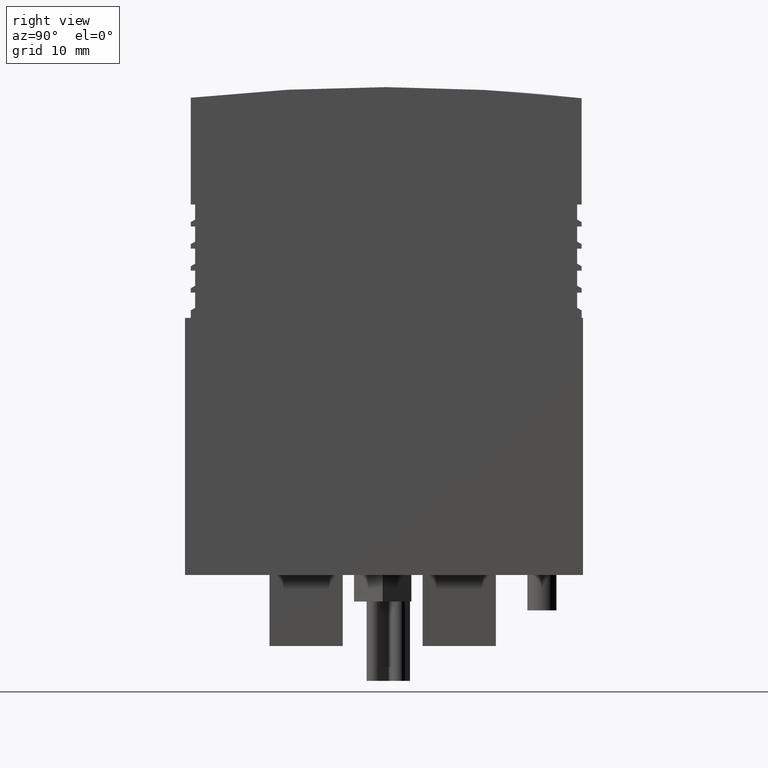
[diagram: clean part render]
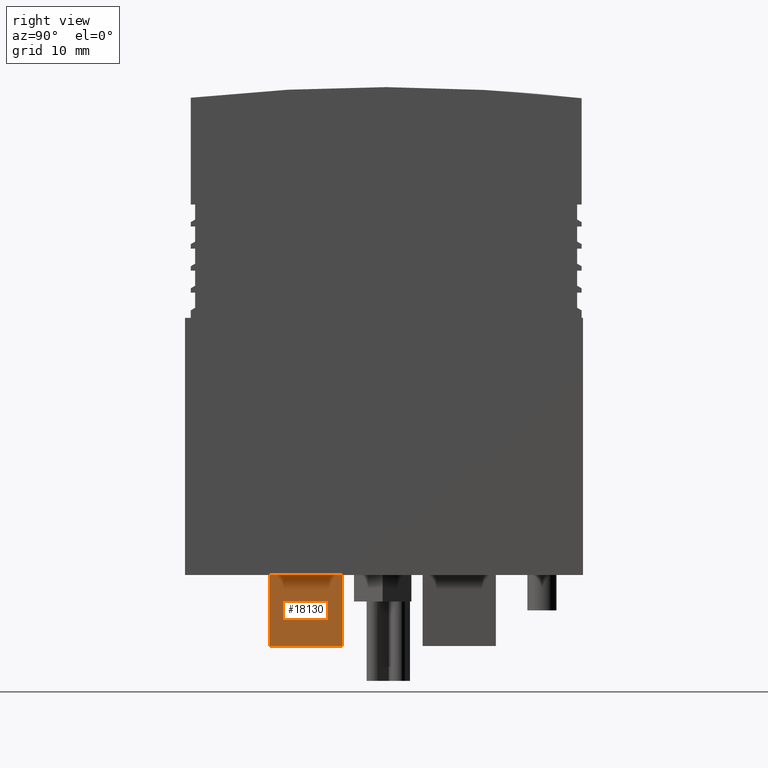
[diagram: same view with one face highlighted and labeled with its STEP entity id]
A machine part, right view. The second image highlights one B-rep face of the part: STEP entity #18130.
In plain terms, the highlighted planar face has unit normal (1, 0, -0).
Its self-contained STEP definition (entity closure, byte-faithful):
#14530=CARTESIAN_POINT('',(0.292475090033506,24.7145893912869,
12.2499542451584));
#14540=DIRECTION('',(-1.,-1.22464679914738E-16,2.44929359829314E-16));
#14550=VECTOR('',#14540,1.);
#14560=LINE('',#14530,#14550);
#14570=CARTESIAN_POINT('',(-4.37876244637354,24.7145893912869,
12.2499542451584));
#14580=VERTEX_POINT('',#14570);
#14590=CARTESIAN_POINT('',(-12.6787624463735,24.7145893912869,
12.2499542451584));
#14600=VERTEX_POINT('',#14590);
#14610=EDGE_CURVE('',#14580,#14600,#14560,.T.);
#17640=CARTESIAN_POINT('',(-12.6787624463735,16.6645893912869,
12.2499542451583));
#17650=VERTEX_POINT('',#17640);
#17680=CARTESIAN_POINT('',(-12.6787624463735,16.6645893912869,
12.2499542451583));
#17690=DIRECTION('',(1.,1.22464679914738E-16,-2.44929359829313E-16));
#17700=VECTOR('',#17690,1.);
#17710=LINE('',#17680,#17700);
#17720=CARTESIAN_POINT('',(-4.37876244637354,16.6645893912869,
12.2499542451583));
#17730=VERTEX_POINT('',#17720);
#17740=EDGE_CURVE('',#17650,#17730,#17710,.T.);
#17920=CARTESIAN_POINT('',(-12.6787624463735,24.7145893912869,
12.2499542451584));
#17930=DIRECTION('',(2.44929359829315E-16,-1.24373101147408E-14,1.));
#17940=DIRECTION('',(1.,1.22464679914738E-16,-2.44929359829313E-16));
#17950=AXIS2_PLACEMENT_3D('',#17920,#17930,#17940);
#17960=PLANE('',#17950);
#17970=CARTESIAN_POINT('',(-4.37876244637354,24.7145893912869,
12.2499542451584));
#17980=DIRECTION('',(1.22464679914735E-16,-1.,-1.24373101147408E-14));
#17990=VECTOR('',#17980,1.);
#18000=LINE('',#17970,#17990);
#18010=EDGE_CURVE('',#14580,#17730,#18000,.T.);
#18020=ORIENTED_EDGE('',*,*,#18010,.F.);
#18030=ORIENTED_EDGE('',*,*,#17740,.T.);
#18040=CARTESIAN_POINT('',(-12.6787624463735,24.7145893912869,
12.2499542451584));
#18050=DIRECTION('',(1.22464679914735E-16,-1.,-1.24373101147408E-14));
#18060=VECTOR('',#18050,1.);
#18070=LINE('',#18040,#18060);
#18080=EDGE_CURVE('',#14600,#17650,#18070,.T.);
#18090=ORIENTED_EDGE('',*,*,#18080,.T.);
#18100=ORIENTED_EDGE('',*,*,#14610,.T.);
#18110=EDGE_LOOP('',(#18100,#18090,#18030,#18020));
#18120=FACE_OUTER_BOUND('',#18110,.T.);
#18130=ADVANCED_FACE('',(#18120),#17960,.T.);